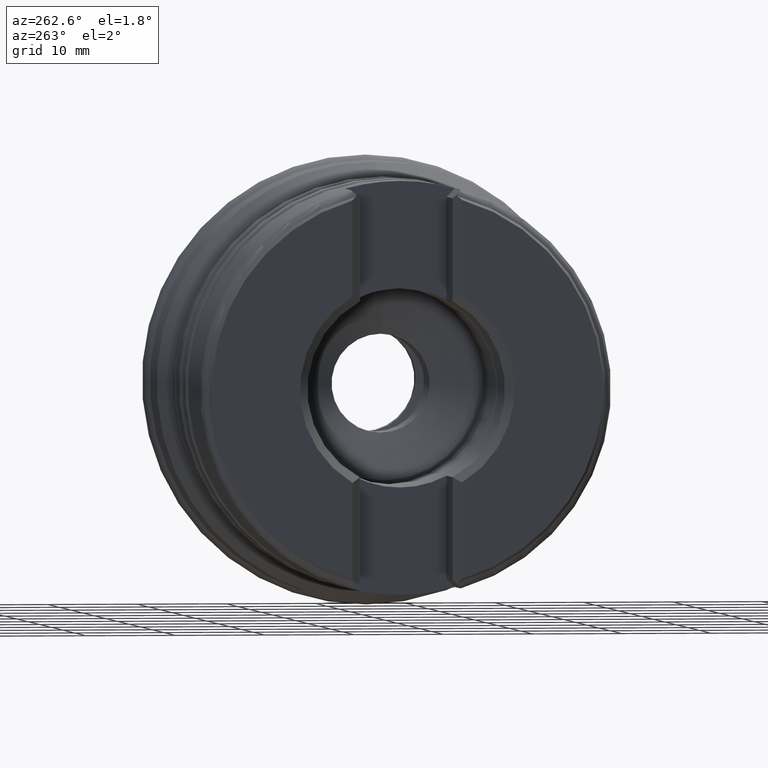
[diagram: clean part render]
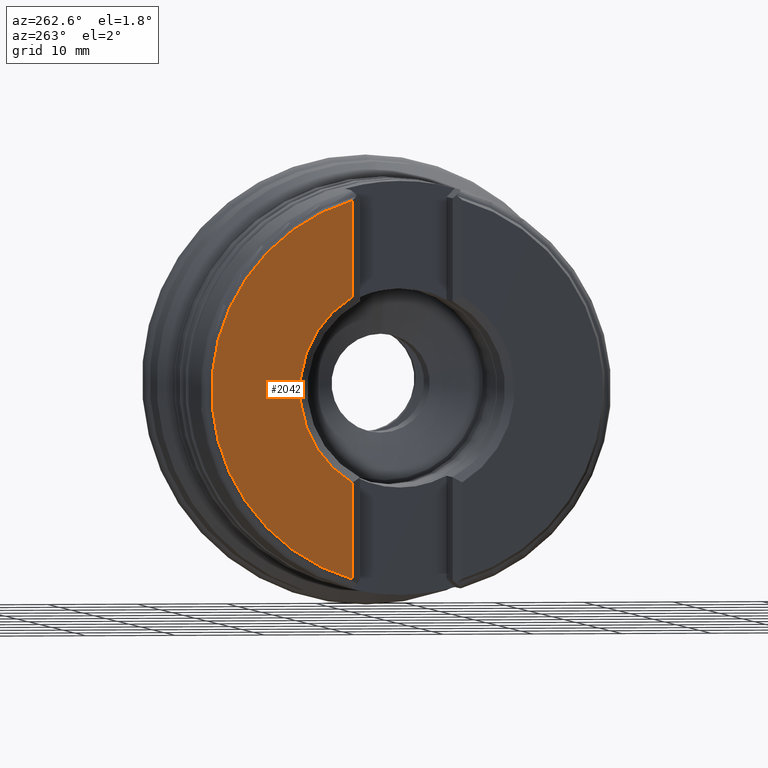
[diagram: same view with one face highlighted and labeled with its STEP entity id]
A machine part, auxiliary view. The second image highlights one B-rep face of the part: STEP entity #2042.
In plain terms, the highlighted planar face has unit normal (1, 0, -0).
Its self-contained STEP definition (entity closure, byte-faithful):
#285 = AXIS2_PLACEMENT_3D ( 'NONE', #698, #707, #708 ) ;
#313 = AXIS2_PLACEMENT_3D ( 'NONE', #801, #804, #805 ) ;
#347 = AXIS2_PLACEMENT_3D ( 'NONE', #953, #962, #963 ) ;
#372 = VERTEX_POINT ( 'NONE', #843 ) ;
#389 = VERTEX_POINT ( 'NONE', #539 ) ;
#405 = VERTEX_POINT ( 'NONE', #455 ) ;
#455 = CARTESIAN_POINT ( 'NONE',  ( -38.95000000000001000, 6.150000000000025200, 21.04196264864113900 ) ) ;
#539 = CARTESIAN_POINT ( 'NONE',  ( -38.95000000000001000, 6.150000000000024300, -10.33335013439495500 ) ) ;
#621 = CARTESIAN_POINT ( 'NONE',  ( -38.95000000000001000, 6.150000000000025200, -35.00000000000000000 ) ) ;
#622 = DIRECTION ( 'NONE',  ( 0.0000000000000000000, 0.0000000000000000000, -1.000000000000000000 ) ) ;
#637 = CARTESIAN_POINT ( 'NONE',  ( -38.95000000000001000, 6.150000000000025200, -35.00000000000000000 ) ) ;
#638 = DIRECTION ( 'NONE',  ( 0.0000000000000000000, 0.0000000000000000000, -1.000000000000000000 ) ) ;
#697 = PLANE ( 'NONE',  #285 ) ;
#698 = CARTESIAN_POINT ( 'NONE',  ( -38.95000000000001000, -6.227799209338314600E-015, 0.0000000000000000000 ) ) ;
#707 = DIRECTION ( 'NONE',  ( 1.000000000000000000, 0.0000000000000000000, -0.0000000000000000000 ) ) ;
#708 = DIRECTION ( 'NONE',  ( -0.0000000000000000000, 0.0000000000000000000, -1.000000000000000000 ) ) ;
#801 = CARTESIAN_POINT ( 'NONE',  ( -38.95000000000001000, 0.0000000000000000000, 0.0000000000000000000 ) ) ;
#804 = DIRECTION ( 'NONE',  ( -1.000000000000000000, 0.0000000000000000000, 0.0000000000000000000 ) ) ;
#805 = DIRECTION ( 'NONE',  ( 0.0000000000000000000, 0.0000000000000000000, -1.000000000000000000 ) ) ;
#843 = CARTESIAN_POINT ( 'NONE',  ( -38.95000000000001000, 6.150000000000025200, 10.33335013439495100 ) ) ;
#953 = CARTESIAN_POINT ( 'NONE',  ( -38.95000000000001000, 0.0000000000000000000, 0.0000000000000000000 ) ) ;
#962 = DIRECTION ( 'NONE',  ( -1.000000000000000000, 0.0000000000000000000, 0.0000000000000000000 ) ) ;
#963 = DIRECTION ( 'NONE',  ( 0.0000000000000000000, -8.881784197001252300E-016, -1.000000000000000000 ) ) ;
#1008 = CARTESIAN_POINT ( 'NONE',  ( -38.95000000000001000, 6.150000000000024300, -21.04196264864114600 ) ) ;
#1273 = ORIENTED_EDGE ( 'NONE', *, *, #2016, .F. ) ;
#1376 = ORIENTED_EDGE ( 'NONE', *, *, #2093, .T. ) ;
#1522 = EDGE_LOOP ( 'NONE', ( #1659, #1273, #1376, #1738 ) ) ;
#1659 = ORIENTED_EDGE ( 'NONE', *, *, #2355, .F. ) ;
#1738 = ORIENTED_EDGE ( 'NONE', *, *, #2022, .F. ) ;
#2016 = EDGE_CURVE ( 'NONE', #405, #372, #2266, .T. ) ;
#2022 = EDGE_CURVE ( 'NONE', #389, #2546, #2136, .T. ) ;
#2042 = ADVANCED_FACE ( 'NONE', ( #2143 ), #697, .F. ) ;
#2093 = EDGE_CURVE ( 'NONE', #405, #2546, #2134, .T. ) ;
#2134 = CIRCLE ( 'NONE', #313, 21.92228756555321900 ) ;
#2136 = LINE ( 'NONE', #637, #2146 ) ;
#2143 = FACE_OUTER_BOUND ( 'NONE', #1522, .T. ) ;
#2146 = VECTOR ( 'NONE', #638, 1000.000000000000000 ) ;
#2238 = VECTOR ( 'NONE', #622, 1000.000000000000000 ) ;
#2266 = LINE ( 'NONE', #621, #2238 ) ;
#2282 = CIRCLE ( 'NONE', #347, 12.02500000000002200 ) ;
#2355 = EDGE_CURVE ( 'NONE', #372, #389, #2282, .T. ) ;
#2546 = VERTEX_POINT ( 'NONE', #1008 ) ;